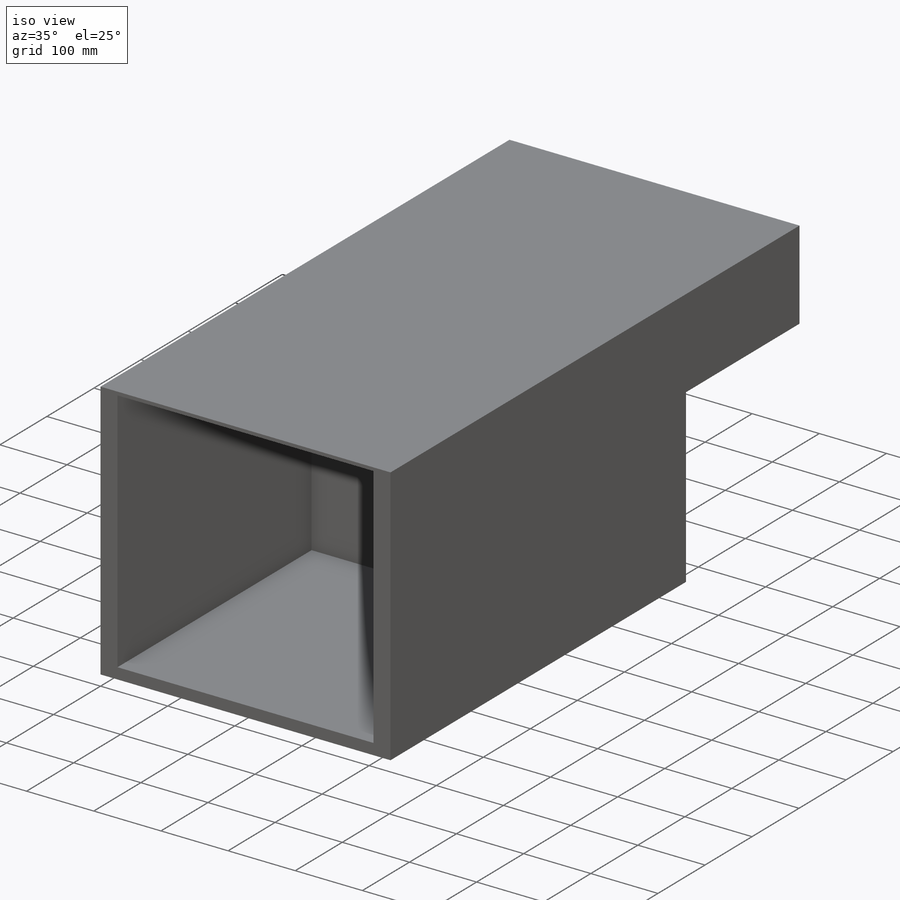
[diagram: iso view]
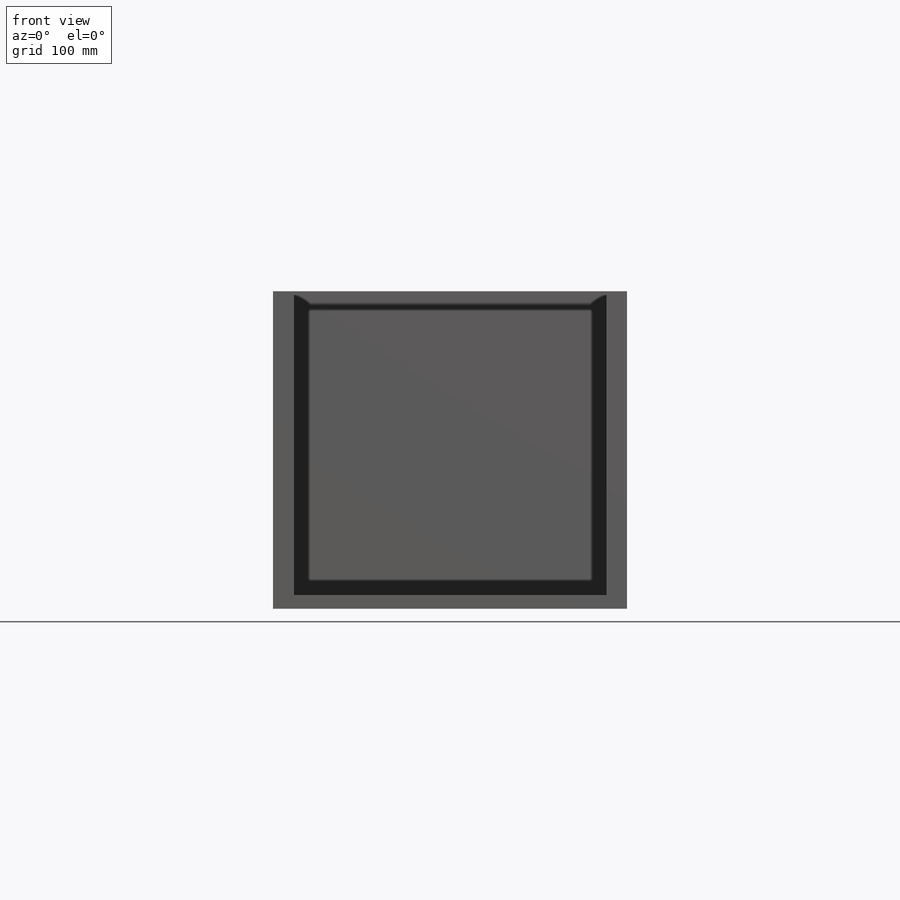
[diagram: front view]
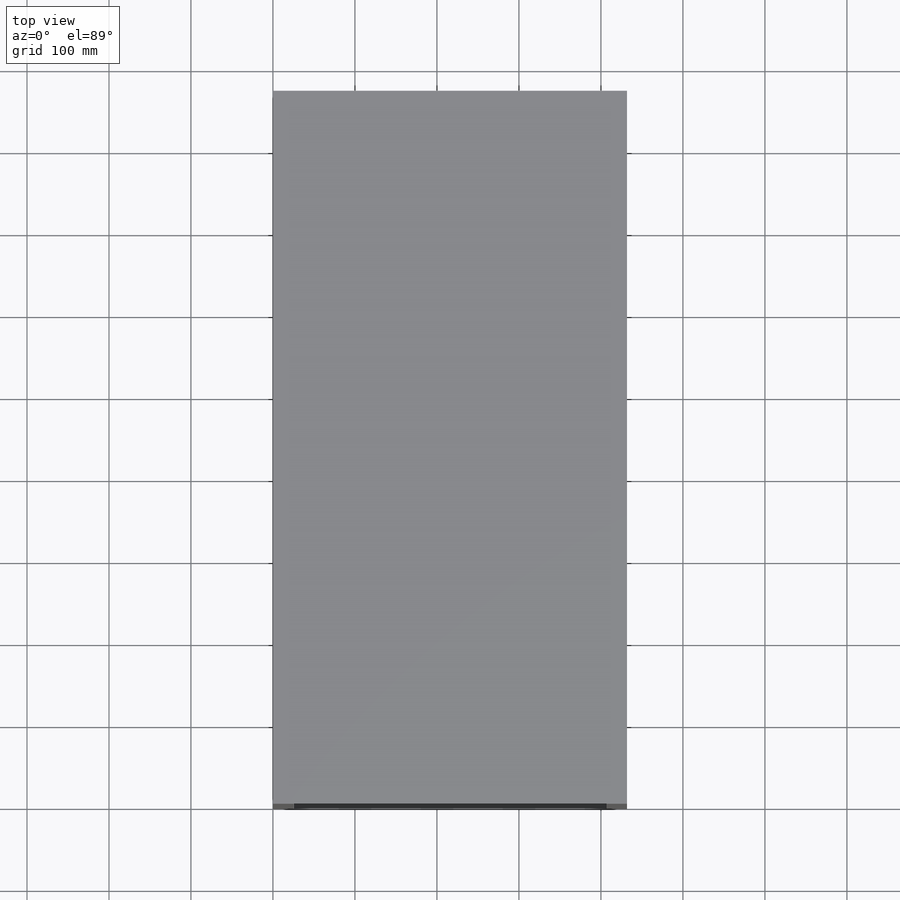
[diagram: top view]
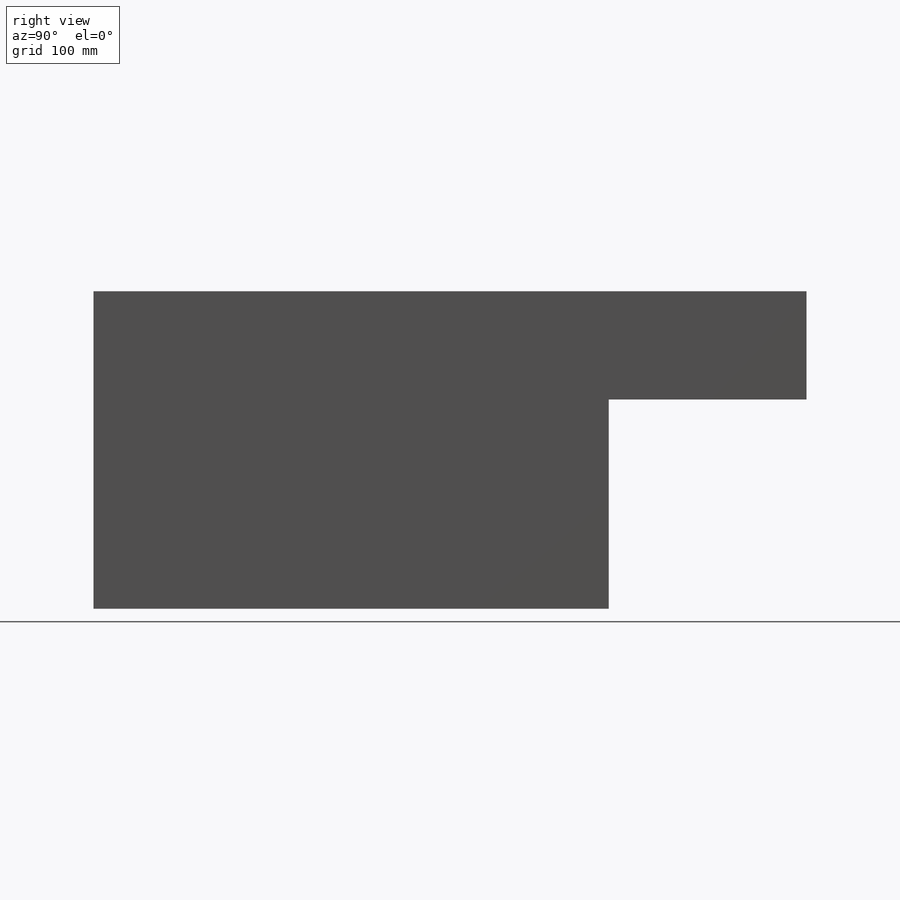
[diagram: right view]
SOLIDWORKS PART (.sldprt)
format: sldprt  version: not decoded by parser v0  size: 124,928 bytes
history: native  units: mm
features: sketch x3, cut_extrude x2, material x1, extrude x1 (+11 scaffold rows collapsed)
feature tree (18):
  scaffold x11  (default folders/planes/origin — collapsed)
  material  "Material <not specified>"
  sketch  "Sketch1"  dims[c1.D1=~74.612122mm c1.D2=~115.115846mm c2.D1=~317.437243mm]
  extrude  "Boss-Extrude1"  Depth=431.8mm
  sketch  "Sketch2"  dims[D1=~139.587936mm D2=~244.888242mm]
  cut_extrude  "Cut-Extrude1"  Depth=203.2mm
  sketch  "Sketch3"  dims[c1.D1=~272.022081mm c1.D2=~348.515357mm c2.D1=365.76mm]
  cut_extrude  "Cut-Extrude2"  Depth=412.496mm
decode coverage: 6 of 6 modeling features carry decoded parameters
note: ~ marks probable driven/reference dimensions
note: suppression state not decoded; provenance and decode notes live in map.json
